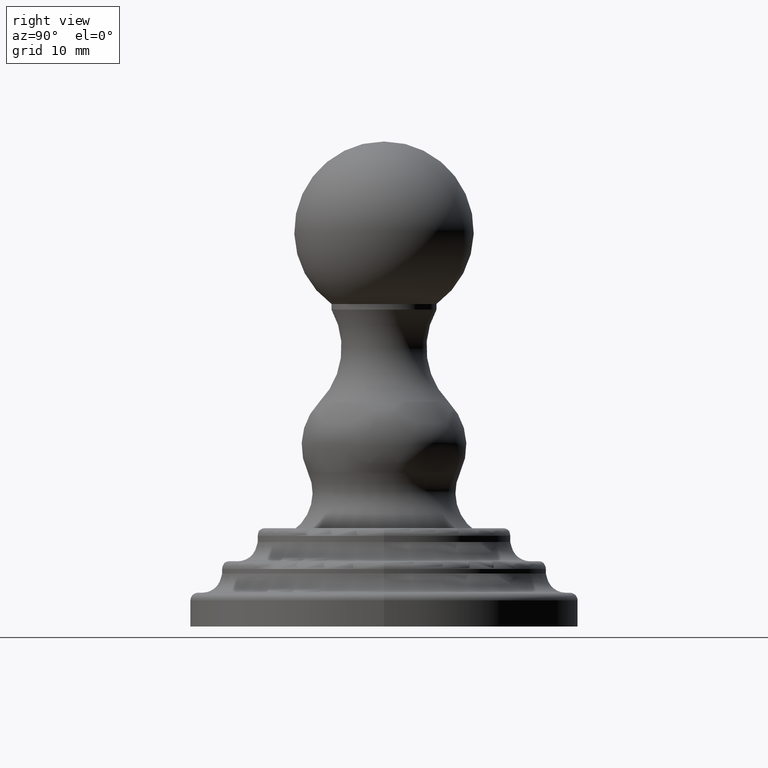
[diagram: clean part render]
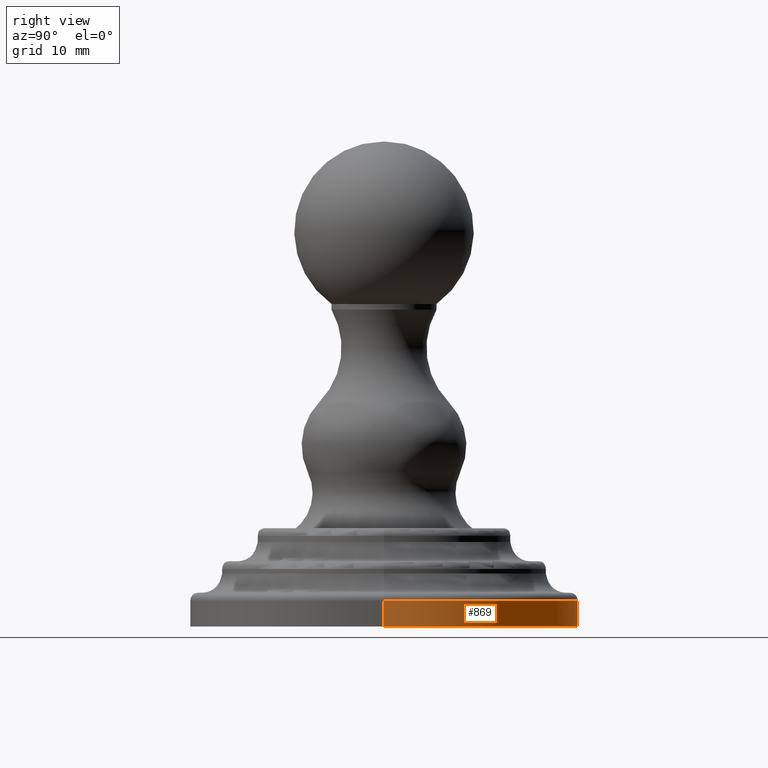
[diagram: same view with one face highlighted and labeled with its STEP entity id]
A machine part, right view. The second image highlights one B-rep face of the part: STEP entity #869.
In plain terms, the highlighted cylindrical surface (partial cylindrical patch) has radius 25.019 mm, axis along (0, 0, 1).
Its self-contained STEP definition (entity closure, byte-faithful):
#206=CARTESIAN_POINT('',(-1.226274579390E-14,0.E0,1.33E-1));
#207=DIRECTION('',(0.E0,0.E0,1.E0));
#208=DIRECTION('',(1.E0,0.E0,0.E0));
#209=AXIS2_PLACEMENT_3D('',#206,#207,#208);
#214=DIRECTION('',(0.E0,4.781184846532E-13,1.E0));
#215=VECTOR('',#214,1.33E-1);
#216=CARTESIAN_POINT('',(-9.85E-1,0.E0,0.E0));
#217=LINE('',#216,#215);
#221=CARTESIAN_POINT('',(-1.224645799147E-14,0.E0,0.E0));
#222=DIRECTION('',(0.E0,0.E0,-1.E0));
#223=DIRECTION('',(-1.E0,0.E0,0.E0));
#224=AXIS2_PLACEMENT_3D('',#221,#222,#223);
#229=DIRECTION('',(0.E0,-4.798041228459E-13,1.E0));
#230=VECTOR('',#229,1.33E-1);
#231=CARTESIAN_POINT('',(9.85E-1,0.E0,0.E0));
#232=LINE('',#231,#230);
#710=CARTESIAN_POINT('',(-9.85E-1,0.E0,1.33E-1));
#711=CARTESIAN_POINT('',(9.85E-1,0.E0,1.33E-1));
#712=VERTEX_POINT('',#710);
#713=VERTEX_POINT('',#711);
#730=CARTESIAN_POINT('',(-9.85E-1,0.E0,0.E0));
#731=VERTEX_POINT('',#730);
#732=CARTESIAN_POINT('',(9.85E-1,0.E0,0.E0));
#733=VERTEX_POINT('',#732);
#857=CARTESIAN_POINT('',(-1.224339637448E-14,0.E0,-2.5E-2));
#858=DIRECTION('',(0.E0,0.E0,1.E0));
#859=DIRECTION('',(-1.E0,0.E0,0.E0));
#860=AXIS2_PLACEMENT_3D('',#857,#858,#859);
#861=CYLINDRICAL_SURFACE('',#860,9.85E-1);
#862=ORIENTED_EDGE('',*,*,#844,.T.);
#863=ORIENTED_EDGE('',*,*,#779,.F.);
#865=ORIENTED_EDGE('',*,*,#864,.T.);
#866=ORIENTED_EDGE('',*,*,#775,.T.);
#867=EDGE_LOOP('',(#862,#863,#865,#866));
#868=FACE_OUTER_BOUND('',#867,.F.);
#210=CIRCLE('',#209,9.85E-1);
#225=CIRCLE('',#224,9.85E-1);
#775=EDGE_CURVE('',#733,#713,#232,.T.);
#779=EDGE_CURVE('',#731,#712,#217,.T.);
#844=EDGE_CURVE('',#713,#712,#210,.T.);
#864=EDGE_CURVE('',#731,#733,#225,.T.);
#869=ADVANCED_FACE('',(#868),#861,.T.);